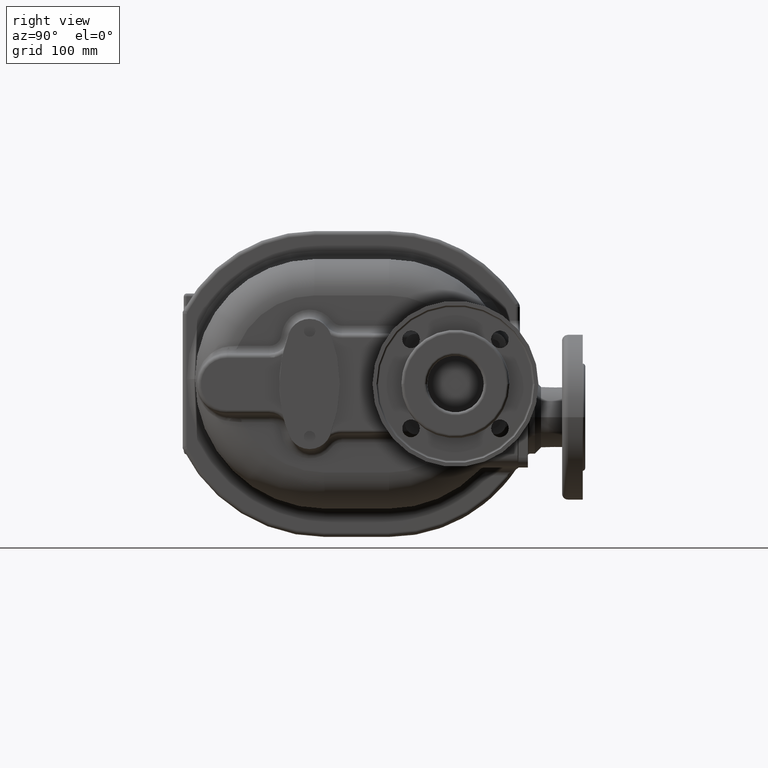
[diagram: clean part render]
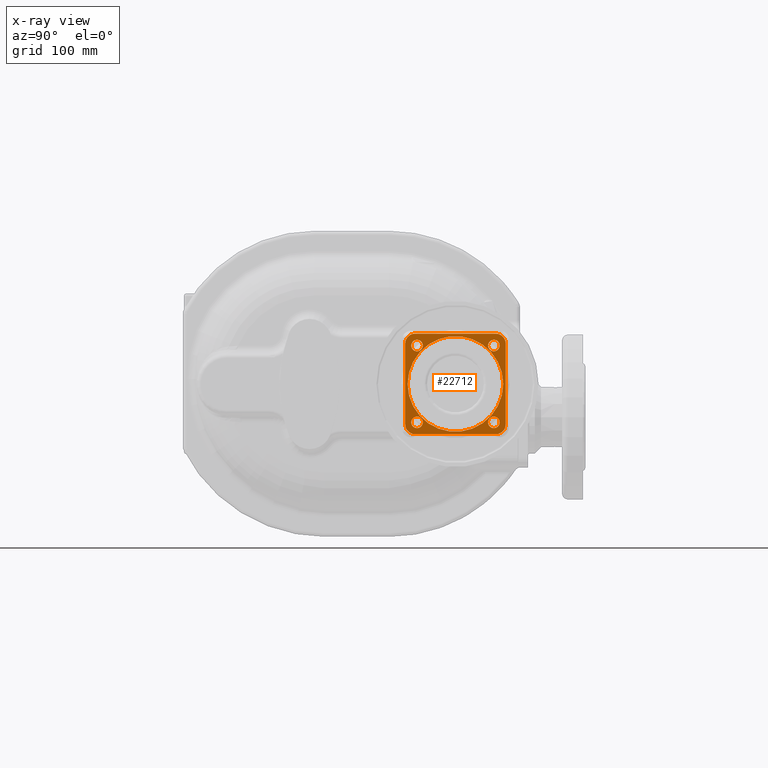
[diagram: x-ray — body ghosted, one internal face saturated and labeled with its STEP entity id]
A machine part, right view, then the same camera in x-ray: the body is ghosted and one INTERNAL B-rep face — a face not visible from any outside direction — is saturated and labeled: STEP entity #22712.
In plain terms, the highlighted planar face has unit normal (1, 0, 0).
Its self-contained STEP definition (entity closure, byte-faithful):
#8027=CARTESIAN_POINT('',(1.055E2,1.35E2,-1.E1));
#8028=DIRECTION('',(1.E0,0.E0,0.E0));
#8029=DIRECTION('',(0.E0,1.E0,0.E0));
#8030=AXIS2_PLACEMENT_3D('',#8027,#8028,#8029);
#8041=CARTESIAN_POINT('',(1.055E2,1.35E2,-1.E1));
#8042=DIRECTION('',(-1.E0,0.E0,0.E0));
#8043=DIRECTION('',(0.E0,1.E0,0.E0));
#8044=AXIS2_PLACEMENT_3D('',#8041,#8042,#8043);
#8050=DIRECTION('',(0.E0,-1.E0,0.E0));
#8051=VECTOR('',#8050,8.E1);
#8052=CARTESIAN_POINT('',(1.055E2,1.75E2,4.E1));
#8053=LINE('',#8052,#8051);
#8066=CARTESIAN_POINT('',(1.055E2,1.75E2,3.E1));
#8067=DIRECTION('',(-1.E0,0.E0,0.E0));
#8068=DIRECTION('',(0.E0,0.E0,1.E0));
#8069=AXIS2_PLACEMENT_3D('',#8066,#8067,#8068);
#8076=DIRECTION('',(0.E0,0.E0,1.E0));
#8077=VECTOR('',#8076,8.E1);
#8078=CARTESIAN_POINT('',(1.055E2,1.85E2,-5.E1));
#8079=LINE('',#8078,#8077);
#8092=CARTESIAN_POINT('',(1.055E2,1.75E2,-5.E1));
#8093=DIRECTION('',(-1.E0,0.E0,0.E0));
#8094=DIRECTION('',(0.E0,1.E0,0.E0));
#8095=AXIS2_PLACEMENT_3D('',#8092,#8093,#8094);
#8102=DIRECTION('',(0.E0,1.E0,0.E0));
#8103=VECTOR('',#8102,8.E1);
#8104=CARTESIAN_POINT('',(1.055E2,9.5E1,-6.E1));
#8105=LINE('',#8104,#8103);
#8118=CARTESIAN_POINT('',(1.055E2,9.5E1,-5.E1));
#8119=DIRECTION('',(-1.E0,0.E0,0.E0));
#8120=DIRECTION('',(0.E0,0.E0,-1.E0));
#8121=AXIS2_PLACEMENT_3D('',#8118,#8119,#8120);
#8128=DIRECTION('',(0.E0,0.E0,-1.E0));
#8129=VECTOR('',#8128,8.E1);
#8130=CARTESIAN_POINT('',(1.055E2,8.5E1,3.E1));
#8131=LINE('',#8130,#8129);
#8144=CARTESIAN_POINT('',(1.055E2,9.5E1,3.E1));
#8145=DIRECTION('',(-1.E0,0.E0,0.E0));
#8146=DIRECTION('',(0.E0,-1.E0,0.E0));
#8147=AXIS2_PLACEMENT_3D('',#8144,#8145,#8146);
#8834=CARTESIAN_POINT('',(1.055E2,9.681623381593E1,-4.818376618407E1));
#8835=DIRECTION('',(-1.E0,0.E0,0.E0));
#8836=DIRECTION('',(0.E0,0.E0,-1.E0));
#8837=AXIS2_PLACEMENT_3D('',#8834,#8835,#8836);
#8843=CARTESIAN_POINT('',(1.055E2,9.681623381593E1,-4.818376618407E1));
#8844=DIRECTION('',(-1.E0,0.E0,0.E0));
#8845=DIRECTION('',(0.E0,0.E0,1.E0));
#8846=AXIS2_PLACEMENT_3D('',#8843,#8844,#8845);
#8852=CARTESIAN_POINT('',(1.055E2,9.681623381593E1,2.818376618407E1));
#8853=DIRECTION('',(-1.E0,0.E0,0.E0));
#8854=DIRECTION('',(0.E0,-1.E0,0.E0));
#8855=AXIS2_PLACEMENT_3D('',#8852,#8853,#8854);
#8861=CARTESIAN_POINT('',(1.055E2,9.681623381593E1,2.818376618407E1));
#8862=DIRECTION('',(-1.E0,0.E0,0.E0));
#8863=DIRECTION('',(0.E0,1.E0,0.E0));
#8864=AXIS2_PLACEMENT_3D('',#8861,#8862,#8863);
#8870=CARTESIAN_POINT('',(1.055E2,1.731837661841E2,2.818376618407E1));
#8871=DIRECTION('',(-1.E0,0.E0,0.E0));
#8872=DIRECTION('',(0.E0,0.E0,1.E0));
#8873=AXIS2_PLACEMENT_3D('',#8870,#8871,#8872);
#8879=CARTESIAN_POINT('',(1.055E2,1.731837661841E2,2.818376618407E1));
#8880=DIRECTION('',(-1.E0,0.E0,0.E0));
#8881=DIRECTION('',(0.E0,0.E0,-1.E0));
#8882=AXIS2_PLACEMENT_3D('',#8879,#8880,#8881);
#8888=CARTESIAN_POINT('',(1.055E2,1.731837661841E2,-4.818376618407E1));
#8889=DIRECTION('',(-1.E0,0.E0,0.E0));
#8890=DIRECTION('',(0.E0,1.E0,0.E0));
#8891=AXIS2_PLACEMENT_3D('',#8888,#8889,#8890);
#8897=CARTESIAN_POINT('',(1.055E2,1.731837661841E2,-4.818376618407E1));
#8898=DIRECTION('',(-1.E0,0.E0,0.E0));
#8899=DIRECTION('',(0.E0,-1.E0,0.E0));
#8900=AXIS2_PLACEMENT_3D('',#8897,#8898,#8899);
#10804=CARTESIAN_POINT('',(1.055E2,1.825E2,-1.E1));
#10805=CARTESIAN_POINT('',(1.055E2,8.75E1,-1.E1));
#10806=VERTEX_POINT('',#10804);
#10807=VERTEX_POINT('',#10805);
#10812=CARTESIAN_POINT('',(1.055E2,9.681623381593E1,-5.393376618407E1));
#10813=CARTESIAN_POINT('',(1.055E2,9.681623381593E1,-4.243376618407E1));
#10814=VERTEX_POINT('',#10812);
#10815=VERTEX_POINT('',#10813);
#10816=CARTESIAN_POINT('',(1.055E2,9.106623381593E1,2.818376618407E1));
#10817=CARTESIAN_POINT('',(1.055E2,1.025662338159E2,2.818376618407E1));
#10818=VERTEX_POINT('',#10816);
#10819=VERTEX_POINT('',#10817);
#10820=CARTESIAN_POINT('',(1.055E2,1.731837661841E2,3.393376618407E1));
#10821=CARTESIAN_POINT('',(1.055E2,1.731837661841E2,2.243376618407E1));
#10822=VERTEX_POINT('',#10820);
#10823=VERTEX_POINT('',#10821);
#10824=CARTESIAN_POINT('',(1.055E2,1.789337661841E2,-4.818376618407E1));
#10825=CARTESIAN_POINT('',(1.055E2,1.674337661841E2,-4.818376618407E1));
#10826=VERTEX_POINT('',#10824);
#10827=VERTEX_POINT('',#10825);
#10844=CARTESIAN_POINT('',(1.055E2,1.75E2,4.E1));
#10845=CARTESIAN_POINT('',(1.055E2,9.5E1,4.E1));
#10846=VERTEX_POINT('',#10844);
#10847=VERTEX_POINT('',#10845);
#10848=CARTESIAN_POINT('',(1.055E2,8.5E1,3.E1));
#10849=CARTESIAN_POINT('',(1.055E2,8.5E1,-5.E1));
#10850=VERTEX_POINT('',#10848);
#10851=VERTEX_POINT('',#10849);
#10852=CARTESIAN_POINT('',(1.055E2,9.5E1,-6.E1));
#10853=CARTESIAN_POINT('',(1.055E2,1.75E2,-6.E1));
#10854=VERTEX_POINT('',#10852);
#10855=VERTEX_POINT('',#10853);
#10856=CARTESIAN_POINT('',(1.055E2,1.85E2,-5.E1));
#10857=CARTESIAN_POINT('',(1.055E2,1.85E2,3.E1));
#10858=VERTEX_POINT('',#10856);
#10859=VERTEX_POINT('',#10857);
#22661=CARTESIAN_POINT('',(1.055E2,1.35E2,-1.E1));
#22662=DIRECTION('',(1.E0,0.E0,0.E0));
#22663=DIRECTION('',(0.E0,1.E0,0.E0));
#22664=AXIS2_PLACEMENT_3D('',#22661,#22662,#22663);
#22665=PLANE('',#22664);
#22667=ORIENTED_EDGE('',*,*,#22666,.T.);
#22669=ORIENTED_EDGE('',*,*,#22668,.F.);
#22671=ORIENTED_EDGE('',*,*,#22670,.T.);
#22673=ORIENTED_EDGE('',*,*,#22672,.F.);
#22675=ORIENTED_EDGE('',*,*,#22674,.T.);
#22677=ORIENTED_EDGE('',*,*,#22676,.F.);
#22679=ORIENTED_EDGE('',*,*,#22678,.T.);
#22681=ORIENTED_EDGE('',*,*,#22680,.F.);
#22682=EDGE_LOOP('',(#22667,#22669,#22671,#22673,#22675,#22677,#22679,#22681));
#22683=FACE_OUTER_BOUND('',#22682,.F.);
#22684=ORIENTED_EDGE('',*,*,#22655,.T.);
#22685=ORIENTED_EDGE('',*,*,#22641,.F.);
#22686=EDGE_LOOP('',(#22684,#22685));
#22687=FACE_BOUND('',#22686,.F.);
#22689=ORIENTED_EDGE('',*,*,#22688,.T.);
#22691=ORIENTED_EDGE('',*,*,#22690,.T.);
#22692=EDGE_LOOP('',(#22689,#22691));
#22693=FACE_BOUND('',#22692,.F.);
#22695=ORIENTED_EDGE('',*,*,#22694,.T.);
#22697=ORIENTED_EDGE('',*,*,#22696,.T.);
#22698=EDGE_LOOP('',(#22695,#22697));
#22699=FACE_BOUND('',#22698,.F.);
#22701=ORIENTED_EDGE('',*,*,#22700,.T.);
#22703=ORIENTED_EDGE('',*,*,#22702,.T.);
#22704=EDGE_LOOP('',(#22701,#22703));
#22705=FACE_BOUND('',#22704,.F.);
#22707=ORIENTED_EDGE('',*,*,#22706,.T.);
#22709=ORIENTED_EDGE('',*,*,#22708,.T.);
#22710=EDGE_LOOP('',(#22707,#22709));
#22711=FACE_BOUND('',#22710,.F.);
#22712=ADVANCED_FACE('',(#22683,#22687,#22693,#22699,#22705,#22711),#22665,.F.);
#8031=CIRCLE('',#8030,4.75E1);
#8045=CIRCLE('',#8044,4.75E1);
#8070=CIRCLE('',#8069,1.E1);
#8096=CIRCLE('',#8095,1.E1);
#8122=CIRCLE('',#8121,1.E1);
#8148=CIRCLE('',#8147,1.E1);
#8838=CIRCLE('',#8837,5.75E0);
#8847=CIRCLE('',#8846,5.75E0);
#8856=CIRCLE('',#8855,5.75E0);
#8865=CIRCLE('',#8864,5.75E0);
#8874=CIRCLE('',#8873,5.75E0);
#8883=CIRCLE('',#8882,5.75E0);
#8892=CIRCLE('',#8891,5.75E0);
#8901=CIRCLE('',#8900,5.75E0);
#22641=EDGE_CURVE('',#10806,#10807,#8031,.T.);
#22655=EDGE_CURVE('',#10806,#10807,#8045,.T.);
#22666=EDGE_CURVE('',#10846,#10847,#8053,.T.);
#22668=EDGE_CURVE('',#10850,#10847,#8148,.T.);
#22670=EDGE_CURVE('',#10850,#10851,#8131,.T.);
#22672=EDGE_CURVE('',#10854,#10851,#8122,.T.);
#22674=EDGE_CURVE('',#10854,#10855,#8105,.T.);
#22676=EDGE_CURVE('',#10858,#10855,#8096,.T.);
#22678=EDGE_CURVE('',#10858,#10859,#8079,.T.);
#22680=EDGE_CURVE('',#10846,#10859,#8070,.T.);
#22688=EDGE_CURVE('',#10814,#10815,#8838,.T.);
#22690=EDGE_CURVE('',#10815,#10814,#8847,.T.);
#22694=EDGE_CURVE('',#10818,#10819,#8856,.T.);
#22696=EDGE_CURVE('',#10819,#10818,#8865,.T.);
#22700=EDGE_CURVE('',#10822,#10823,#8874,.T.);
#22702=EDGE_CURVE('',#10823,#10822,#8883,.T.);
#22706=EDGE_CURVE('',#10826,#10827,#8892,.T.);
#22708=EDGE_CURVE('',#10827,#10826,#8901,.T.);